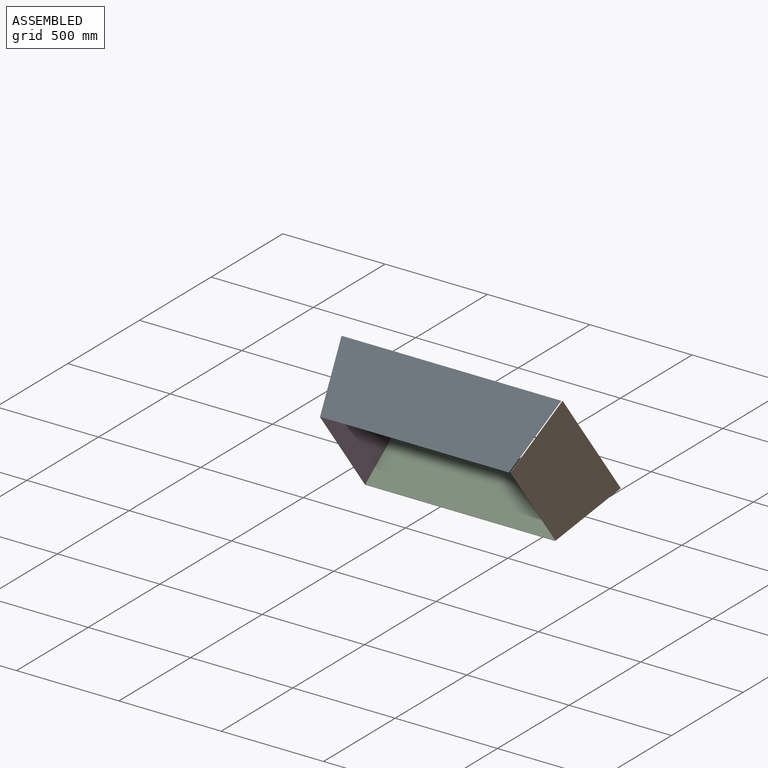
[diagram: assembled view]
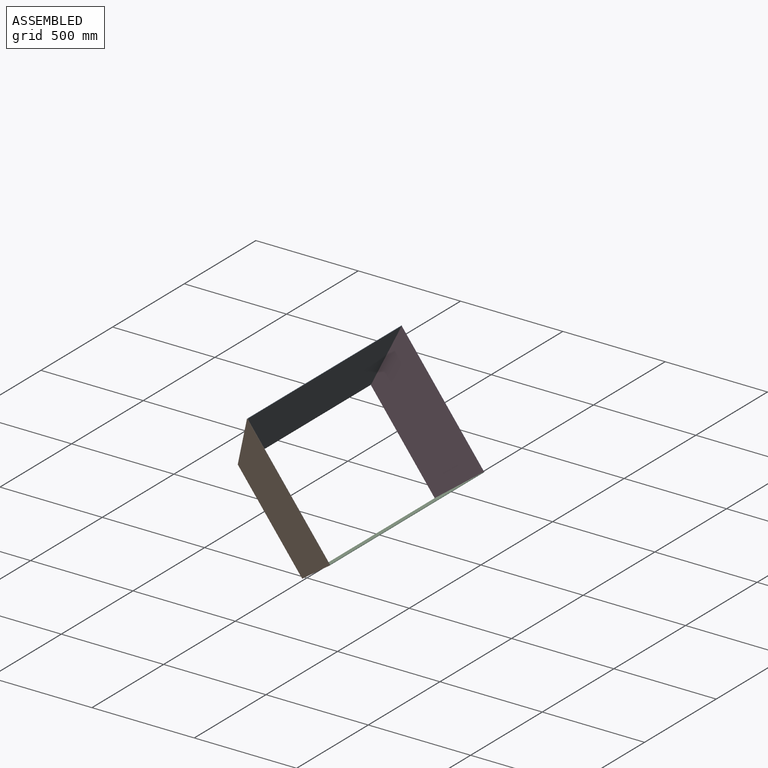
[diagram: assembled view, second angle]
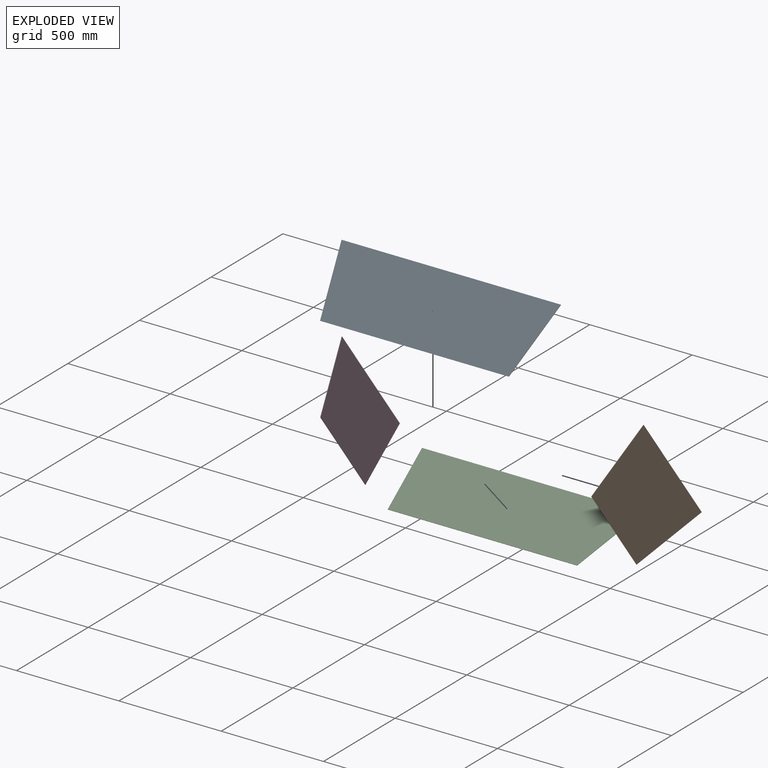
[diagram: exploded view]
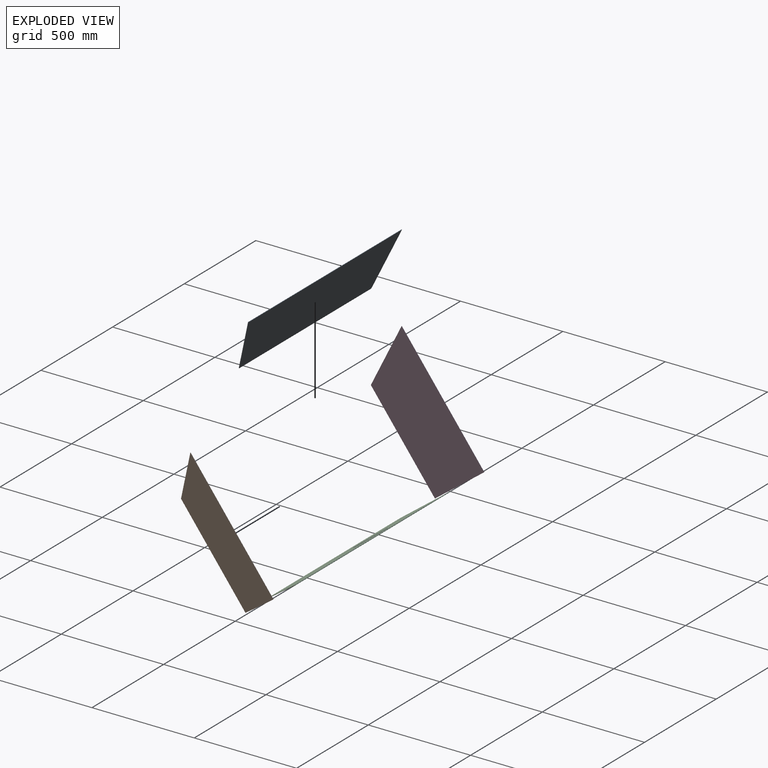
[diagram: exploded view, second angle]
ASSEMBLY  parts=4 mates=9
PART A: 6 faces, bbox 1072x2x336 mm
  f0: plane 336x2mm, normal (-1,0,0), area 672mm2, adj f1,f3,f4,f5
  f1: plane 922x2mm, normal (0,0,-1), area 1844mm2, adj f0,f2,f4,f5
  f2: plane 336x150mm, normal (0.91,0,-0.41), area 735.9mm2, adj f1,f3,f4,f5
  f3: plane 1072x2mm, normal (0,0,1), area 2144mm2, adj f0,f2,f4,f5
  f4: plane 1072x336mm, normal (0,-1,0), area 334992mm2, adj f0,f1,f2,f3
  f5: plane 1072x336mm, normal (0,1,0), area 334992mm2, adj f0,f1,f2,f3
PART B: 6 faces, bbox 2x675x336 mm
  f0: plane 525x2mm, normal (0,0,-1), area 1050mm2, adj f1,f3,f4,f5
  f1: plane 336x2mm, normal (0,1,0), area 672mm2, adj f0,f2,f4,f5
  f2: plane 675x2mm, normal (0,0,1), area 1350mm2, adj f1,f3,f4,f5
  f3: plane 336x150mm, normal (0,-0.91,-0.41), area 735.9mm2, adj f0,f2,f4,f5
  f4: plane 675x336mm, normal (1,0,0), area 201600mm2, adj f0,f1,f2,f3
  f5: plane 675x336mm, normal (-1,0,0), area 201600mm2, adj f0,f1,f2,f3
PART C: 6 faces, bbox 1075x2x300 mm
  f0: plane 300x2mm, normal (-1,0,0), area 600mm2, adj f1,f3,f4,f5
  f1: plane 925x2mm, normal (0,0,-1), area 1850mm2, adj f0,f2,f4,f5
  f2: plane 300x150mm, normal (0.89,0,-0.45), area 670.8mm2, adj f1,f3,f4,f5
  f3: plane 1075x2mm, normal (0,0,1), area 2150mm2, adj f0,f2,f4,f5
  f4: plane 1075x300mm, normal (0,-1,0), area 300000mm2, adj f0,f1,f2,f3
  f5: plane 1075x300mm, normal (0,1,0), area 300000mm2, adj f0,f1,f2,f3
PART D: 6 faces, bbox 2x672x300 mm
  f0: plane 522x2mm, normal (0,0,-1), area 1044mm2, adj f1,f3,f4,f5
  f1: plane 300x2mm, normal (0,1,0), area 600mm2, adj f0,f2,f4,f5
  f2: plane 672x2mm, normal (0,0,1), area 1344mm2, adj f1,f3,f4,f5
  f3: plane 300x150mm, normal (0,-0.89,-0.45), area 670.8mm2, adj f0,f2,f4,f5
  f4: plane 672x300mm, normal (1,0,0), area 179100mm2, adj f0,f1,f2,f3
  f5: plane 672x300mm, normal (-1,0,0), area 179100mm2, adj f0,f1,f2,f3
PLACE A rot(axis=(-1,0,0),26.6deg) t=(198.36,-1144.16,228.52)mm
PLACE B rot(axis=(-0.88,0.42,-0.21),59deg) t=(740.71,-942.16,-39.17)mm
PLACE C rot(axis=(-1,0,0),53.1deg) t=(201.86,-786.82,-250.79)mm fixed
PLACE D rot(axis=(-1,0,0),53.1deg) t=(-262.64,-943.42,-41.99)mm
MATE planar A.f0 <-> D.f5  axis (-1,0,0) through (-262.64,-1145.06,228.97)mm
MATE planar D.f1 <-> C.f5  axis (0,0.6,-0.8) through (-261.64,-786.82,-250.79)mm
MATE planar B.f5 <-> C.f2  axis (-0.89,0.36,0.27) through (743.84,-960.59,-4.16)mm
MATE planar D.f4 <-> C.f0  axis (1,0,0) through (-260.64,-961.83,-6.96)mm
MATE planar C.f3 <-> D.f2  axis (0,0.8,0.6) through (276.86,-667.42,-159.99)mm
MATE planar A.f5 <-> D.f3  axis (0,0.89,-0.45) through (236.8,-1142.28,232.29)mm
MATE planar A.f5 <-> D.f3  axis (0,0.89,-0.45) through (236.8,-1142.28,232.29)mm
MATE planar B.f1 <-> C.f5  axis (0,0.6,-0.8) through (741.61,-785.02,-249.44)mm
MATE planar B.f1 <-> C.f5  axis (0,0.6,-0.8) through (741.61,-785.02,-249.44)mm
